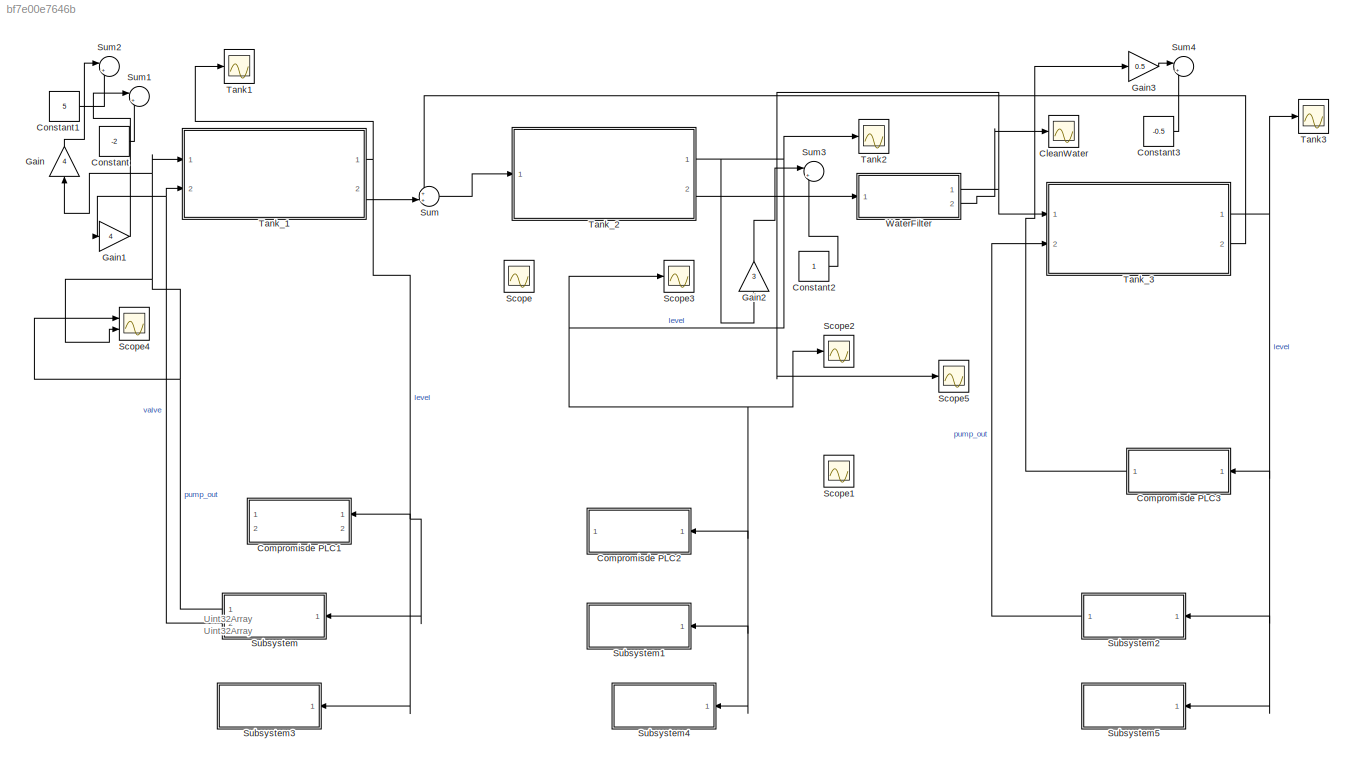
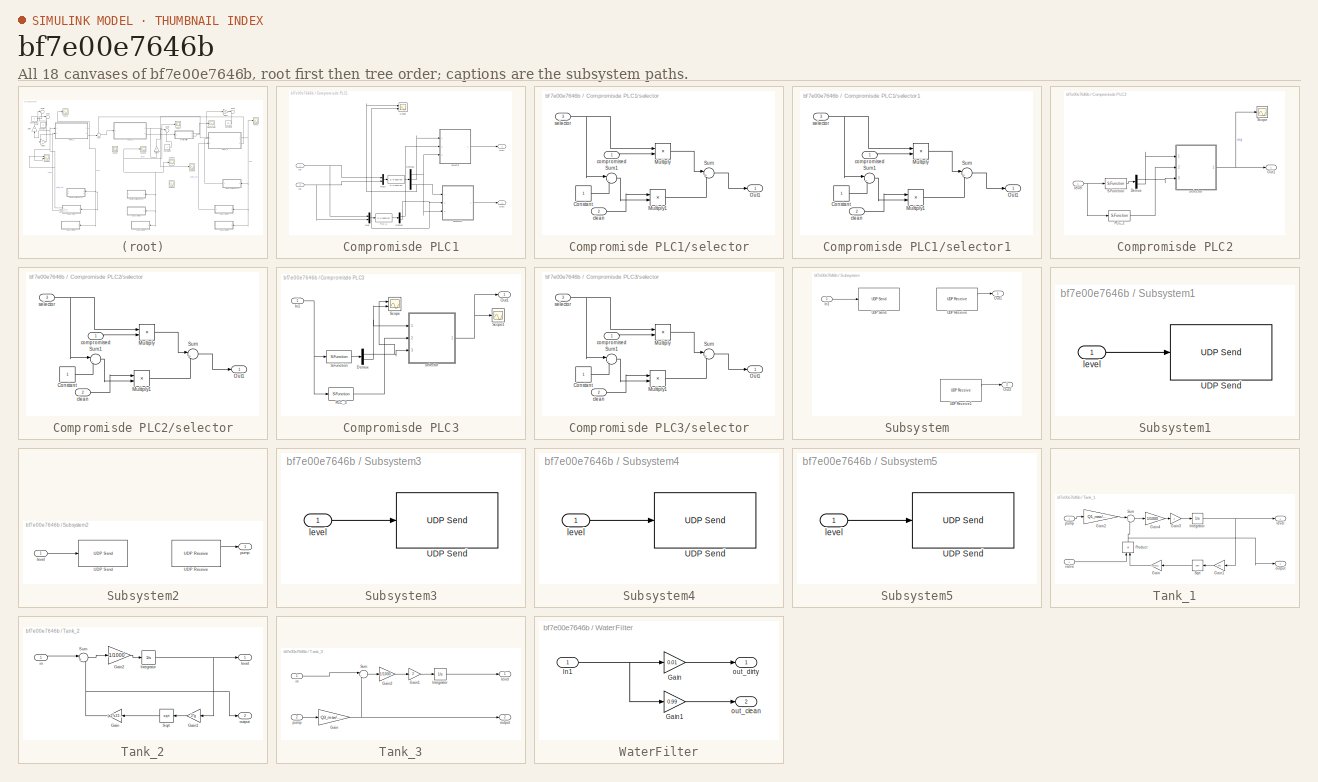
[diagram: thumbnail index - all 18 canvases of the model, root first then tree order]
MODEL slx_bf7e00e7646b
KIND model
CONFIG AbsTol = auto
CONFIG EnableMultiTasking = off
CONFIG FixedStep = auto
CONFIG MaxStep = auto
CONFIG MinStep = auto
CONFIG RelTol = 1e-3
CONFIG SampleTimeConstraint = Unconstrained
CONFIG SolverName = VariableStepAuto
CONFIG StartTime = 0.0
CONFIG StopTime = inf
BLOCK [Scope] CleanWater 
  Floating = off
  NumInputPorts = 1
  Ports = [1]
  ScopeSpecificationString = Simulink.scopes.TimeScopeBlockCfg('CurrentConfiguration', extmgr.ConfigurationSet(extmgr.Configuration('Core','General UI',true),extmgr.Configuration('Core','Source UI',true),extmgr.Configuration('Sources','WiredSimulink',true,'DataLoggingVariableName','ScopeData1'),extmgr.Configuration('Visuals','Time Domain',true,'SerializedDisplays',{struct('MinYLimReal','0.1032484','MaxYLimReal','0.1032507','Y...<+1415ch>
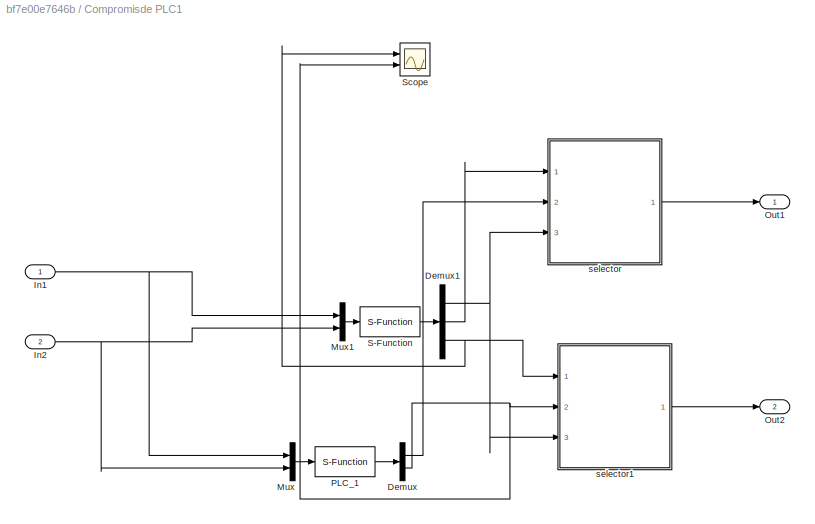
BLOCK [SubSystem] Compromisde PLC1
  Commented = on
  Ports = [2, 2]
  RequestExecContextInheritance = off
BLOCK [Demux] Compromisde PLC1/Demux
  Outputs = 2
  Ports = [1, 2]
BLOCK [Demux] Compromisde PLC1/Demux1
  Outputs = 3
  Ports = [1, 3]
BLOCK [Inport] Compromisde PLC1/In1
BLOCK [Inport] Compromisde PLC1/In2
  Port = 2
BLOCK [Mux] Compromisde PLC1/Mux
  DisplayOption = bar
  Inputs = 2
  Ports = [2, 1]
BLOCK [Mux] Compromisde PLC1/Mux1
  DisplayOption = bar
  Inputs = 2
  Ports = [2, 1]
BLOCK [Outport] Compromisde PLC1/Out1
  VectorParamsAs1DForOutWhenUnconnected = off
BLOCK [Outport] Compromisde PLC1/Out2
  Port = 2
  VectorParamsAs1DForOutWhenUnconnected = off
BLOCK [S-Function] Compromisde PLC1/PLC_1
  EnableBusSupport = off
  FunctionName = PLC1
  Ports = [1, 1]
  SFcnIsStateOwnerBlock = off
  SFunctionDeploymentMode = off
BLOCK [S-Function] Compromisde PLC1/S-Function
  EnableBusSupport = off
  FunctionName = Malware1
  Ports = [1, 1]
  SFcnIsStateOwnerBlock = off
  SFunctionDeploymentMode = off
BLOCK [Scope] Compromisde PLC1/Scope
  Floating = off
  NumInputPorts = 2
  Ports = [2]
  ScopeSpecificationString = Simulink.scopes.TimeScopeBlockCfg('CurrentConfiguration', extmgr.ConfigurationSet(extmgr.Configuration('Core','General UI',true),extmgr.Configuration('Core','Source UI',true),extmgr.Configuration('Sources','WiredSimulink',true,'DataLoggingVariableName','ScopeData4'),extmgr.Configuration('Visuals','Time Domain',true,'SerializedDisplays',{struct('MinYLimReal','-0.125','MaxYLimReal','1.125','YLabelRe...<+1365ch>
BLOCK [SubSystem] Compromisde PLC1/selector
  Ports = [3, 1]
  RequestExecContextInheritance = off
BLOCK [Constant] Compromisde PLC1/selector/Constant
BLOCK [Product] Compromisde PLC1/selector/Multiply
  Ports = [2, 1]
BLOCK [Product] Compromisde PLC1/selector/Multiply1
  Ports = [2, 1]
BLOCK [Outport] Compromisde PLC1/selector/Out1
  VectorParamsAs1DForOutWhenUnconnected = off
BLOCK [Sum] Compromisde PLC1/selector/Sum
  Inputs = |++
  Ports = [2, 1]
BLOCK [Sum] Compromisde PLC1/selector/Sum1
  Inputs = |-+
  Ports = [2, 1]
BLOCK [Inport] Compromisde PLC1/selector/clean
  Port = 2
BLOCK [Inport] Compromisde PLC1/selector/compromised
BLOCK [Inport] Compromisde PLC1/selector/selector
  Port = 3
BLOCK [SubSystem] Compromisde PLC1/selector1
  Ports = [3, 1]
  RequestExecContextInheritance = off
BLOCK [Constant] Compromisde PLC1/selector1/Constant
BLOCK [Product] Compromisde PLC1/selector1/Multiply
  Ports = [2, 1]
BLOCK [Product] Compromisde PLC1/selector1/Multiply1
  Ports = [2, 1]
BLOCK [Outport] Compromisde PLC1/selector1/Out1
  VectorParamsAs1DForOutWhenUnconnected = off
BLOCK [Sum] Compromisde PLC1/selector1/Sum
  Inputs = |++
  Ports = [2, 1]
BLOCK [Sum] Compromisde PLC1/selector1/Sum1
  Inputs = |-+
  Ports = [2, 1]
BLOCK [Inport] Compromisde PLC1/selector1/clean
  Port = 2
BLOCK [Inport] Compromisde PLC1/selector1/compromised
BLOCK [Inport] Compromisde PLC1/selector1/selector
  Port = 3
BLOCK [SubSystem] Compromisde PLC2
  Commented = on
  Ports = [1, 1]
  RequestExecContextInheritance = off
BLOCK [Demux] Compromisde PLC2/Demux
  Outputs = 2
  Ports = [1, 2]
BLOCK [Outport] Compromisde PLC2/Out1
  VectorParamsAs1DForOutWhenUnconnected = off
BLOCK [S-Function] Compromisde PLC2/PLC_2
  EnableBusSupport = off
  FunctionName = PLC2
  Ports = [1, 1]
  SFcnIsStateOwnerBlock = off
  SFunctionDeploymentMode = off
BLOCK [S-Function] Compromisde PLC2/S-Function
  EnableBusSupport = off
  FunctionName = Malware2
  Ports = [1, 1]
  SFcnIsStateOwnerBlock = off
  SFunctionDeploymentMode = off
BLOCK [Scope] Compromisde PLC2/Scope
  Floating = off
  NumInputPorts = 1
  Ports = [1]
  ScopeSpecificationString = Simulink.scopes.TimeScopeBlockCfg('CurrentConfiguration', extmgr.ConfigurationSet(extmgr.Configuration('Core','General UI',true),extmgr.Configuration('Core','Source UI',true),extmgr.Configuration('Sources','WiredSimulink',true,'DataLoggingVariableName','ScopeData1'),extmgr.Configuration('Visuals','Time Domain',true,'SerializedDisplays',{struct('MinYLimReal','-0.17995','MaxYLimReal','1.15394','YLab...<+1433ch>
BLOCK [Inport] Compromisde PLC2/level
BLOCK [SubSystem] Compromisde PLC2/selector
  Ports = [3, 1]
  RequestExecContextInheritance = off
BLOCK [Constant] Compromisde PLC2/selector/Constant
BLOCK [Product] Compromisde PLC2/selector/Multiply
  Ports = [2, 1]
BLOCK [Product] Compromisde PLC2/selector/Multiply1
  Ports = [2, 1]
BLOCK [Outport] Compromisde PLC2/selector/Out1
  VectorParamsAs1DForOutWhenUnconnected = off
BLOCK [Sum] Compromisde PLC2/selector/Sum
  Inputs = |++
  Ports = [2, 1]
BLOCK [Sum] Compromisde PLC2/selector/Sum1
  Inputs = |-+
  Ports = [2, 1]
BLOCK [Inport] Compromisde PLC2/selector/clean
  Port = 2
BLOCK [Inport] Compromisde PLC2/selector/compromised
BLOCK [Inport] Compromisde PLC2/selector/selector
  Port = 3
BLOCK [SubSystem] Compromisde PLC3
  Commented = on
  Ports = [1, 1]
  RequestExecContextInheritance = off
BLOCK [Demux] Compromisde PLC3/Demux
  Outputs = 2
  Ports = [1, 2]
BLOCK [Inport] Compromisde PLC3/In1
BLOCK [Outport] Compromisde PLC3/Out1
  VectorParamsAs1DForOutWhenUnconnected = off
BLOCK [S-Function] Compromisde PLC3/PLC_3 
  EnableBusSupport = off
  FunctionName = PLC3
  Ports = [1, 1]
  SFcnIsStateOwnerBlock = off
  SFunctionDeploymentMode = off
BLOCK [S-Function] Compromisde PLC3/S-Function
  EnableBusSupport = off
  FunctionName = Malware3
  Ports = [1, 1]
  SFcnIsStateOwnerBlock = off
  SFunctionDeploymentMode = off
BLOCK [Scope] Compromisde PLC3/Scope
  Floating = off
  NumInputPorts = 2
  Ports = [2]
  ScopeSpecificationString = Simulink.scopes.TimeScopeBlockCfg('CurrentConfiguration', extmgr.ConfigurationSet(extmgr.Configuration('Core','General UI',true),extmgr.Configuration('Core','Source UI',true),extmgr.Configuration('Sources','WiredSimulink',true,'DataLoggingVariableName','ScopeData1'),extmgr.Configuration('Visuals','Time Domain',true,'SerializedDisplays',{struct('MinYLimReal','-0.125','MaxYLimReal','1.125','YLabelRe...<+1364ch>
BLOCK [Scope] Compromisde PLC3/Scope1
  Floating = off
  NumInputPorts = 1
  Ports = [1]
  ScopeSpecificationString = Simulink.scopes.TimeScopeBlockCfg('CurrentConfiguration', extmgr.ConfigurationSet(extmgr.Configuration('Core','General UI',true),extmgr.Configuration('Core','Source UI',true),extmgr.Configuration('Sources','WiredSimulink',true,'DataLoggingVariableName','ScopeData2'),extmgr.Configuration('Visuals','Time Domain',true,'SerializedDisplays',{struct('MinYLimReal','-0.125','MaxYLimReal','1.125','YLabelRe...<+1380ch>
BLOCK [SubSystem] Compromisde PLC3/selector
  Ports = [3, 1]
  RequestExecContextInheritance = off
BLOCK [Constant] Compromisde PLC3/selector/Constant
BLOCK [Product] Compromisde PLC3/selector/Multiply
  Ports = [2, 1]
BLOCK [Product] Compromisde PLC3/selector/Multiply1
  Ports = [2, 1]
BLOCK [Outport] Compromisde PLC3/selector/Out1
  VectorParamsAs1DForOutWhenUnconnected = off
BLOCK [Sum] Compromisde PLC3/selector/Sum
  Inputs = |++
  Ports = [2, 1]
BLOCK [Sum] Compromisde PLC3/selector/Sum1
  Inputs = |-+
  Ports = [2, 1]
BLOCK [Inport] Compromisde PLC3/selector/clean
  Port = 2
BLOCK [Inport] Compromisde PLC3/selector/compromised
BLOCK [Inport] Compromisde PLC3/selector/selector
  Port = 3
BLOCK [Constant] Constant
  Value = -2
BLOCK [Constant] Constant1
  Value = 5
BLOCK [Constant] Constant2
BLOCK [Constant] Constant3
  Value = -0.5
BLOCK [Gain] Gain
  Gain = 4
  NameLocation = right
BLOCK [Gain] Gain1
  Gain = 4
BLOCK [Gain] Gain2
  Gain = 3
  NameLocation = right
BLOCK [Gain] Gain3
  Gain = 0.5
BLOCK [Scope] Scope
  Floating = off
  NumInputPorts = 1
  Ports = [1]
  ScopeSpecificationString = Simulink.scopes.TimeScopeBlockCfg('CurrentConfiguration', extmgr.ConfigurationSet(extmgr.Configuration('Core','General UI',true),extmgr.Configuration('Core','Source UI',true),extmgr.Configuration('Sources','WiredSimulink',true,'DataLoggingVariableName','ScopeData1'),extmgr.Configuration('Visuals','Time Domain',true,'SerializedDisplays',{struct('MinYLimReal','-0.125','MaxYLimReal','1.125','YLabelRe...<+1405ch>
BLOCK [Scope] Scope1
  Floating = off
  NumInputPorts = 1
  Ports = [1]
  ScopeSpecificationString = Simulink.scopes.TimeScopeBlockCfg('CurrentConfiguration', extmgr.ConfigurationSet(extmgr.Configuration('Core','General UI',true),extmgr.Configuration('Core','Source UI',true),extmgr.Configuration('Sources','WiredSimulink',true,'DataLoggingVariableName','ScopeData2'),extmgr.Configuration('Visuals','Time Domain',true,'SerializedDisplays',{struct('MinYLimReal','-0.125','MaxYLimReal','1.125','YLabelRe...<+1423ch>
BLOCK [Scope] Scope2
  Floating = off
  NumInputPorts = 1
  Ports = [1]
  ScopeSpecificationString = Simulink.scopes.TimeScopeBlockCfg('CurrentConfiguration', extmgr.ConfigurationSet(extmgr.Configuration('Core','General UI',true),extmgr.Configuration('Core','Source UI',true),extmgr.Configuration('Sources','WiredSimulink',true,'DataLoggingVariableName','ScopeData1'),extmgr.Configuration('Visuals','Time Domain',true,'SerializedDisplays',{struct('MinYLimReal','-2.875','MaxYLimReal','55.875','YLabelR...<+1416ch>
BLOCK [Scope] Scope3
  Floating = off
  NumInputPorts = 1
  Ports = [1]
  ScopeSpecificationString = Simulink.scopes.TimeScopeBlockCfg('CurrentConfiguration', extmgr.ConfigurationSet(extmgr.Configuration('Core','General UI',true),extmgr.Configuration('Core','Source UI',true),extmgr.Configuration('Sources','WiredSimulink',true,'DataLoggingVariableName','ScopeData2'),extmgr.Configuration('Visuals','Time Domain',true,'SerializedDisplays',{struct('MinYLimReal','0.22021','MaxYLimReal','26.97026','YLab...<+1421ch>
BLOCK [Scope] Scope4
  Floating = off
  NumInputPorts = 2
  Ports = [2]
  ScopeSpecificationString = Simulink.scopes.TimeScopeBlockCfg('CurrentConfiguration', extmgr.ConfigurationSet(extmgr.Configuration('Core','General UI',true),extmgr.Configuration('Core','Source UI',true),extmgr.Configuration('Sources','WiredSimulink',true,'DataLoggingVariableName','ScopeData3'),extmgr.Configuration('Visuals','Time Domain',true,'SerializedDisplays',{struct('MinYLimReal','-0.125','MaxYLimReal','1.125','YLabelRe...<+1393ch>
BLOCK [Scope] Scope5
  Floating = off
  NumInputPorts = 1
  Ports = [1]
  ScopeSpecificationString = Simulink.scopes.TimeScopeBlockCfg('CurrentConfiguration', extmgr.ConfigurationSet(extmgr.Configuration('Core','General UI',true),extmgr.Configuration('Core','Source UI',true),extmgr.Configuration('Sources','WiredSimulink',true,'DataLoggingVariableName','ScopeData1'),extmgr.Configuration('Visuals','Time Domain',true,'SerializedDisplays',{struct('MinYLimReal','0.03421','MaxYLimReal','0.04979','YLabe...<+1382ch>
BLOCK [SubSystem] Subsystem
  NameLocation = top
  Ports = [1, 2]
  RequestExecContextInheritance = off
BLOCK [Inport] Subsystem/In1
BLOCK [Outport] Subsystem/Out1
  VectorParamsAs1DForOutWhenUnconnected = off
BLOCK [Outport] Subsystem/Out2
  Port = 2
  VectorParamsAs1DForOutWhenUnconnected = off
BLOCK [Reference] Subsystem/UDP Receive  REF=dspnetwork/UDP Receive
  Ports = [0, 2]
  SourceBlock = dspnetwork/UDP Receive
  SourceProductBaseCode = SL
  SourceType = UDP Receive
BLOCK [Reference] Subsystem/UDP Receive1  REF=dspnetwork/UDP Receive
  Ports = [0, 2]
  SourceBlock = dspnetwork/UDP Receive
  SourceProductBaseCode = SL
  SourceType = UDP Receive
BLOCK [Reference] Subsystem/UDP Send  REF=dspnetwork/UDP Send
  Ports = [1]
  SourceBlock = dspnetwork/UDP Send
  SourceProductBaseCode = SL
  SourceType = UDP Send
BLOCK [SubSystem] Subsystem1
  NameLocation = top
  Ports = [1]
  RequestExecContextInheritance = off
BLOCK [Reference] Subsystem1/UDP Send  REF=dspnetwork/UDP Send
  Ports = [1]
  SourceBlock = dspnetwork/UDP Send
  SourceProductBaseCode = SL
  SourceType = UDP Send
BLOCK [Inport] Subsystem1/level
BLOCK [SubSystem] Subsystem2
  NameLocation = top
  Ports = [1, 1]
  RequestExecContextInheritance = off
BLOCK [Reference] Subsystem2/UDP Receive  REF=dspnetwork/UDP Receive
  Ports = [0, 2]
  SourceBlock = dspnetwork/UDP Receive
  SourceProductBaseCode = SL
  SourceType = UDP Receive
BLOCK [Reference] Subsystem2/UDP Send  REF=dspnetwork/UDP Send
  Ports = [1]
  SourceBlock = dspnetwork/UDP Send
  SourceProductBaseCode = SL
  SourceType = UDP Send
BLOCK [Inport] Subsystem2/level
BLOCK [Outport] Subsystem2/pump
  VectorParamsAs1DForOutWhenUnconnected = off
BLOCK [SubSystem] Subsystem3
  NameLocation = top
  Ports = [1]
  RequestExecContextInheritance = off
BLOCK [Reference] Subsystem3/UDP Send  REF=dspnetwork/UDP Send
  Ports = [1]
  SourceBlock = dspnetwork/UDP Send
  SourceProductBaseCode = SL
  SourceType = UDP Send
BLOCK [Inport] Subsystem3/level
BLOCK [SubSystem] Subsystem4
  NameLocation = top
  Ports = [1]
  RequestExecContextInheritance = off
BLOCK [Reference] Subsystem4/UDP Send  REF=dspnetwork/UDP Send
  Ports = [1]
  SourceBlock = dspnetwork/UDP Send
  SourceProductBaseCode = SL
  SourceType = UDP Send
BLOCK [Inport] Subsystem4/level
BLOCK [SubSystem] Subsystem5
  NameLocation = top
  Ports = [1]
  RequestExecContextInheritance = off
BLOCK [Reference] Subsystem5/UDP Send  REF=dspnetwork/UDP Send
  Ports = [1]
  SourceBlock = dspnetwork/UDP Send
  SourceProductBaseCode = SL
  SourceType = UDP Send
BLOCK [Inport] Subsystem5/level
BLOCK [Sum] Sum
  Inputs = ++|
  Ports = [2, 1]
BLOCK [Sum] Sum1
  Inputs = |++
  Ports = [2, 1]
BLOCK [Sum] Sum2
  Inputs = |++
  Ports = [2, 1]
BLOCK [Sum] Sum3
  Inputs = |++
  Ports = [2, 1]
BLOCK [Sum] Sum4
  Inputs = |++
  Ports = [2, 1]
BLOCK [Scope] Tank1
  Floating = off
  NumInputPorts = 1
  Ports = [1]
  ScopeSpecificationString = Simulink.scopes.TimeScopeBlockCfg('CurrentConfiguration', extmgr.ConfigurationSet(extmgr.Configuration('Core','General UI',true),extmgr.Configuration('Core','Source UI',true),extmgr.Configuration('Sources','WiredSimulink',true,'DataLoggingVariableName','ScopeData2'),extmgr.Configuration('Visuals','Time Domain',true,'SerializedDisplays',{struct('MinYLimReal','-12.25025','MaxYLimReal','90','YLabelRe...<+1587ch>
BLOCK [Scope] Tank2
  Floating = off
  NumInputPorts = 1
  Ports = [1]
  ScopeSpecificationString = Simulink.scopes.TimeScopeBlockCfg('CurrentConfiguration', extmgr.ConfigurationSet(extmgr.Configuration('Core','General UI',true),extmgr.Configuration('Core','Source UI',true),extmgr.Configuration('Sources','WiredSimulink',true,'DataLoggingVariableName','ScopeData3'),extmgr.Configuration('Visuals','Time Domain',true,'SerializedDisplays',{struct('MinYLimReal','-1.','MaxYLimReal','22','YLabelReal',''...<+1547ch>
BLOCK [Scope] Tank3
  Floating = off
  NumInputPorts = 1
  Ports = [1]
  ScopeSpecificationString = Simulink.scopes.TimeScopeBlockCfg('CurrentConfiguration', extmgr.ConfigurationSet(extmgr.Configuration('Core','General UI',true),extmgr.Configuration('Core','Source UI',true),extmgr.Configuration('Sources','WiredSimulink',true),extmgr.Configuration('Visuals','Time Domain',true,'SerializedDisplays',{struct('MinYLimReal','-0.1','MaxYLimReal','10.1','YLabelReal','','MinYLimMag','0.00000','MaxYLimMag'...<+1511ch>
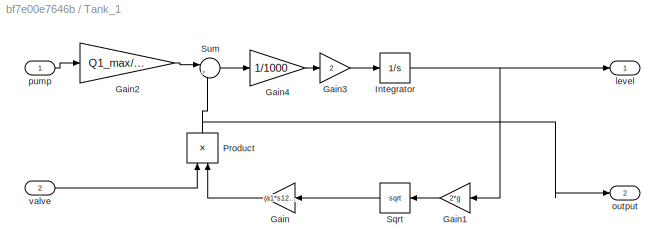
BLOCK [SubSystem] Tank_1
  Ports = [2, 2]
  RequestExecContextInheritance = off
BLOCK [Gain] Tank_1/Gain
  Gain = (a1*s12)/A1
  NameLocation = top
BLOCK [Gain] Tank_1/Gain1
  Gain = 2*g
  NameLocation = top
BLOCK [Gain] Tank_1/Gain2
  Gain = Q1_max/A1
BLOCK [Gain] Tank_1/Gain3
  Gain = 2
BLOCK [Gain] Tank_1/Gain4
  Gain = 1/1000
BLOCK [Integrator] Tank_1/Integrator
  InitialCondition = 0.11*H1_max
  LimitOutput = on
  LowerSaturationLimit = 0
  Ports = [1, 1]
  UpperSaturationLimit = 100
BLOCK [Product] Tank_1/Product
  NameLocation = right
  Ports = [2, 1]
BLOCK [Sqrt] Tank_1/Sqrt
  NameLocation = top
BLOCK [Sum] Tank_1/Sum
  Inputs = |+-
  Ports = [2, 1]
BLOCK [Outport] Tank_1/level
  VectorParamsAs1DForOutWhenUnconnected = off
BLOCK [Outport] Tank_1/output
  Port = 2
  VectorParamsAs1DForOutWhenUnconnected = off
BLOCK [Inport] Tank_1/pump
BLOCK [Inport] Tank_1/valve
  Port = 2
BLOCK [SubSystem] Tank_2
  Ports = [1, 2]
  RequestExecContextInheritance = off
BLOCK [Gain] Tank_2/Gain
  Gain = (a2*s23)/A1
  NameLocation = top
BLOCK [Gain] Tank_2/Gain1
  Gain = 2*g
  NameLocation = top
BLOCK [Gain] Tank_2/Gain2
  Gain = 1/1000
BLOCK [Integrator] Tank_2/Integrator
  InitialCondition = 0.11*H1_max
  LimitOutput = on
  LowerSaturationLimit = 0
  Ports = [1, 1]
  UpperSaturationLimit = 30
BLOCK [Sqrt] Tank_2/Sqrt
  NameLocation = top
BLOCK [Sum] Tank_2/Sum
  Inputs = |+-
  Ports = [2, 1]
BLOCK [Inport] Tank_2/in
BLOCK [Outport] Tank_2/level
  VectorParamsAs1DForOutWhenUnconnected = off
BLOCK [Outport] Tank_2/output
  Port = 2
  VectorParamsAs1DForOutWhenUnconnected = off
BLOCK [SubSystem] Tank_3
  Ports = [2, 2]
  RequestExecContextInheritance = off
BLOCK [Gain] Tank_3/Gain
  Gain = Q3_max/A3
BLOCK [Gain] Tank_3/Gain1
  Gain = 2
BLOCK [Gain] Tank_3/Gain2
  Gain = 1/1000
BLOCK [Integrator] Tank_3/Integrator
  LimitOutput = on
  LowerSaturationLimit = 0
  Ports = [1, 1]
BLOCK [Sum] Tank_3/Sum
  Inputs = |+-
  Ports = [2, 1]
BLOCK [Inport] Tank_3/in
BLOCK [Outport] Tank_3/level
  VectorParamsAs1DForOutWhenUnconnected = off
BLOCK [Outport] Tank_3/output
  Port = 2
  VectorParamsAs1DForOutWhenUnconnected = off
BLOCK [Inport] Tank_3/pump
  Port = 2
BLOCK [SubSystem] WaterFilter
  Ports = [1, 2]
  RequestExecContextInheritance = off
BLOCK [Gain] WaterFilter/Gain
  Gain = 0.01
BLOCK [Gain] WaterFilter/Gain1
  Gain = 0.99
BLOCK [Inport] WaterFilter/In1
BLOCK [Outport] WaterFilter/out_clean 
  Port = 2
  VectorParamsAs1DForOutWhenUnconnected = off
BLOCK [Outport] WaterFilter/out_dirty
  VectorParamsAs1DForOutWhenUnconnected = off
ANNOTATION (root): Uint32Array
NET Compromisde PLC1/Demux1:1 -> Compromisde PLC1/selector1:3, Compromisde PLC1/selector:3
LINE Compromisde PLC1/Demux1:2 -> Compromisde PLC1/selector:1
NET Compromisde PLC1/Demux1:3 -> Compromisde PLC1/Scope:1, Compromisde PLC1/selector1:1
LINE Compromisde PLC1/Demux:1 -> Compromisde PLC1/selector:2
NET Compromisde PLC1/Demux:2 -> Compromisde PLC1/Scope:2, Compromisde PLC1/selector1:2
NET Compromisde PLC1/In1:1 -> Compromisde PLC1/Mux1:1, Compromisde PLC1/Mux:1
NET Compromisde PLC1/In2:1 -> Compromisde PLC1/Mux1:2, Compromisde PLC1/Mux:2
LINE Compromisde PLC1/Mux1:1 -> Compromisde PLC1/S-Function:1
LINE Compromisde PLC1/Mux:1 -> Compromisde PLC1/PLC_1:1
LINE Compromisde PLC1/PLC_1:1 -> Compromisde PLC1/Demux:1
LINE Compromisde PLC1/S-Function:1 -> Compromisde PLC1/Demux1:1
LINE Compromisde PLC1/selector/Constant:1 -> Compromisde PLC1/selector/Sum1:2
LINE Compromisde PLC1/selector/Multiply1:1 -> Compromisde PLC1/selector/Sum:2
LINE Compromisde PLC1/selector/Multiply:1 -> Compromisde PLC1/selector/Sum:1
LINE Compromisde PLC1/selector/Sum1:1 -> Compromisde PLC1/selector/Multiply1:2
LINE Compromisde PLC1/selector/Sum:1 -> Compromisde PLC1/selector/Out1:1
LINE Compromisde PLC1/selector/clean:1 -> Compromisde PLC1/selector/Multiply1:1
LINE Compromisde PLC1/selector/compromised:1 -> Compromisde PLC1/selector/Multiply:2
NET Compromisde PLC1/selector/selector:1 -> Compromisde PLC1/selector/Multiply:1, Compromisde PLC1/selector/Sum1:1
LINE Compromisde PLC1/selector1/Constant:1 -> Compromisde PLC1/selector1/Sum1:2
LINE Compromisde PLC1/selector1/Multiply1:1 -> Compromisde PLC1/selector1/Sum:2
LINE Compromisde PLC1/selector1/Multiply:1 -> Compromisde PLC1/selector1/Sum:1
LINE Compromisde PLC1/selector1/Sum1:1 -> Compromisde PLC1/selector1/Multiply1:2
LINE Compromisde PLC1/selector1/Sum:1 -> Compromisde PLC1/selector1/Out1:1
LINE Compromisde PLC1/selector1/clean:1 -> Compromisde PLC1/selector1/Multiply1:1
LINE Compromisde PLC1/selector1/compromised:1 -> Compromisde PLC1/selector1/Multiply:2
NET Compromisde PLC1/selector1/selector:1 -> Compromisde PLC1/selector1/Multiply:1, Compromisde PLC1/selector1/Sum1:1
LINE Compromisde PLC1/selector1:1 -> Compromisde PLC1/Out2:1
LINE Compromisde PLC1/selector:1 -> Compromisde PLC1/Out1:1
LINE Compromisde PLC2/Demux:1 -> Compromisde PLC2/selector:3
LINE Compromisde PLC2/Demux:2 -> Compromisde PLC2/selector:1
LINE Compromisde PLC2/PLC_2:1 -> Compromisde PLC2/selector:2
LINE Compromisde PLC2/S-Function:1 -> Compromisde PLC2/Demux:1
NET Compromisde PLC2/level:1 -> Compromisde PLC2/PLC_2:1, Compromisde PLC2/S-Function:1
LINE Compromisde PLC2/selector/Constant:1 -> Compromisde PLC2/selector/Sum1:2
LINE Compromisde PLC2/selector/Multiply1:1 -> Compromisde PLC2/selector/Sum:2
LINE Compromisde PLC2/selector/Multiply:1 -> Compromisde PLC2/selector/Sum:1
LINE Compromisde PLC2/selector/Sum1:1 -> Compromisde PLC2/selector/Multiply1:2
LINE Compromisde PLC2/selector/Sum:1 -> Compromisde PLC2/selector/Out1:1
LINE Compromisde PLC2/selector/clean:1 -> Compromisde PLC2/selector/Multiply1:1
LINE Compromisde PLC2/selector/compromised:1 -> Compromisde PLC2/selector/Multiply:2
NET Compromisde PLC2/selector/selector:1 -> Compromisde PLC2/selector/Multiply:1, Compromisde PLC2/selector/Sum1:1
NET Compromisde PLC2/selector:1 -> Compromisde PLC2/Out1:1, Compromisde PLC2/Scope:1
NET Compromisde PLC3/Demux:1 -> Compromisde PLC3/Scope:1, Compromisde PLC3/selector:3
NET Compromisde PLC3/Demux:2 -> Compromisde PLC3/Scope:2, Compromisde PLC3/selector:1
NET Compromisde PLC3/In1:1 -> Compromisde PLC3/PLC_3 :1, Compromisde PLC3/S-Function:1
LINE Compromisde PLC3/PLC_3 :1 -> Compromisde PLC3/selector:2
LINE Compromisde PLC3/S-Function:1 -> Compromisde PLC3/Demux:1
LINE Compromisde PLC3/selector/Constant:1 -> Compromisde PLC3/selector/Sum1:2
LINE Compromisde PLC3/selector/Multiply1:1 -> Compromisde PLC3/selector/Sum:2
LINE Compromisde PLC3/selector/Multiply:1 -> Compromisde PLC3/selector/Sum:1
LINE Compromisde PLC3/selector/Sum1:1 -> Compromisde PLC3/selector/Multiply1:2
LINE Compromisde PLC3/selector/Sum:1 -> Compromisde PLC3/selector/Out1:1
LINE Compromisde PLC3/selector/clean:1 -> Compromisde PLC3/selector/Multiply1:1
LINE Compromisde PLC3/selector/compromised:1 -> Compromisde PLC3/selector/Multiply:2
NET Compromisde PLC3/selector/selector:1 -> Compromisde PLC3/selector/Multiply:1, Compromisde PLC3/selector/Sum1:1
NET Compromisde PLC3/selector:1 -> Compromisde PLC3/Out1:1, Compromisde PLC3/Scope1:1
LINE Compromisde PLC3:1 -> Gain3:1
LINE Constant1:1 -> Sum2:2
LINE Constant2:1 -> Sum3:2
LINE Constant3:1 -> Sum4:2
LINE Constant:1 -> Sum1:2
LINE Gain1:1 -> Sum1:1
LINE Gain2:1 -> Sum3:1
LINE Gain3:1 -> Sum4:1
LINE Gain:1 -> Sum2:1
LINE Subsystem/In1:1 -> Subsystem/UDP Send:1
LINE Subsystem/UDP Receive1:1 -> Subsystem/Out2:1
LINE Subsystem/UDP Receive:1 -> Subsystem/Out1:1
LINE Subsystem1/level:1 -> Subsystem1/UDP Send:1
LINE Subsystem2/UDP Receive:1 -> Subsystem2/pump:1
LINE Subsystem2/level:1 -> Subsystem2/UDP Send:1
LINE Subsystem2:1 -> Tank_3:2
LINE Subsystem3/level:1 -> Subsystem3/UDP Send:1
LINE Subsystem4/level:1 -> Subsystem4/UDP Send:1
LINE Subsystem5/level:1 -> Subsystem5/UDP Send:1
NET Subsystem:1 -> Gain:1, Scope4:1, Scope4:2, Tank_1:1
NET Subsystem:2 -> Gain1:1, Tank_1:2
LINE Sum:1 -> Tank_2:1
LINE Tank_1/Gain1:1 -> Tank_1/Sqrt:1
LINE Tank_1/Gain2:1 -> Tank_1/Sum:1
LINE Tank_1/Gain3:1 -> Tank_1/Integrator:1
LINE Tank_1/Gain4:1 -> Tank_1/Gain3:1
LINE Tank_1/Gain:1 -> Tank_1/Product:2
NET Tank_1/Integrator:1 -> Tank_1/Gain1:1, Tank_1/level:1
NET Tank_1/Product:1 -> Tank_1/Sum:2, Tank_1/output:1
LINE Tank_1/Sqrt:1 -> Tank_1/Gain:1
LINE Tank_1/Sum:1 -> Tank_1/Gain4:1
LINE Tank_1/pump:1 -> Tank_1/Gain2:1
LINE Tank_1/valve:1 -> Tank_1/Product:1
NET Tank_1:1 -> Compromisde PLC1:1, Subsystem3:1, Subsystem:1, Tank1:1
LINE Tank_1:2 -> Sum:2
LINE Tank_2/Gain1:1 -> Tank_2/Sqrt:1
LINE Tank_2/Gain2:1 -> Tank_2/Integrator:1
NET Tank_2/Gain:1 -> Tank_2/Sum:2, Tank_2/output:1
NET Tank_2/Integrator:1 -> Tank_2/Gain1:1, Tank_2/level:1
LINE Tank_2/Sqrt:1 -> Tank_2/Gain:1
LINE Tank_2/Sum:1 -> Tank_2/Gain2:1
LINE Tank_2/in:1 -> Tank_2/Sum:1
NET Tank_2:1 -> Compromisde PLC2:1, Gain2:1, Scope2:1, Scope3:1, Subsystem1:1, Subsystem4:1, Tank2:1
LINE Tank_2:2 -> WaterFilter:1
LINE Tank_3/Gain1:1 -> Tank_3/Integrator:1
LINE Tank_3/Gain2:1 -> Tank_3/Gain1:1
NET Tank_3/Gain:1 -> Tank_3/Sum:2, Tank_3/output:1
LINE Tank_3/Integrator:1 -> Tank_3/level:1
LINE Tank_3/Sum:1 -> Tank_3/Gain2:1
LINE Tank_3/in:1 -> Tank_3/Sum:1
LINE Tank_3/pump:1 -> Tank_3/Gain:1
NET Tank_3:1 -> Compromisde PLC3:1, Subsystem2:1, Subsystem5:1, Tank3:1
LINE Tank_3:2 -> Sum:1
LINE WaterFilter/Gain1:1 -> WaterFilter/out_clean :1
LINE WaterFilter/Gain:1 -> WaterFilter/out_dirty:1
NET WaterFilter/In1:1 -> WaterFilter/Gain1:1, WaterFilter/Gain:1
NET WaterFilter:1 -> Scope5:1, Tank_3:1
LINE WaterFilter:2 -> CleanWater :1
note: NET lines group one-source signal fan-out (src -> all destinations, sorted); 1:1 wires keep LINE
